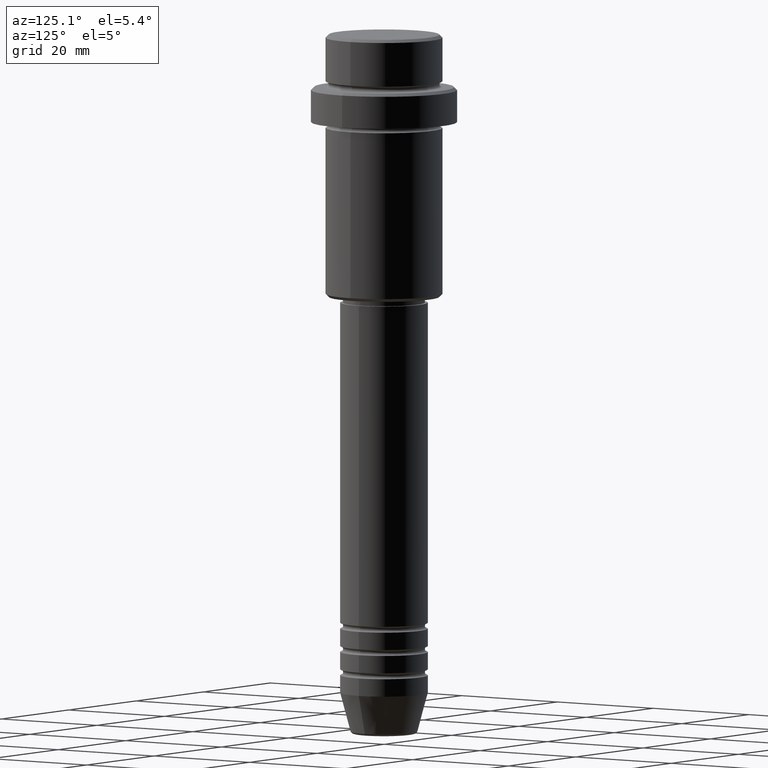
[diagram: clean part render]
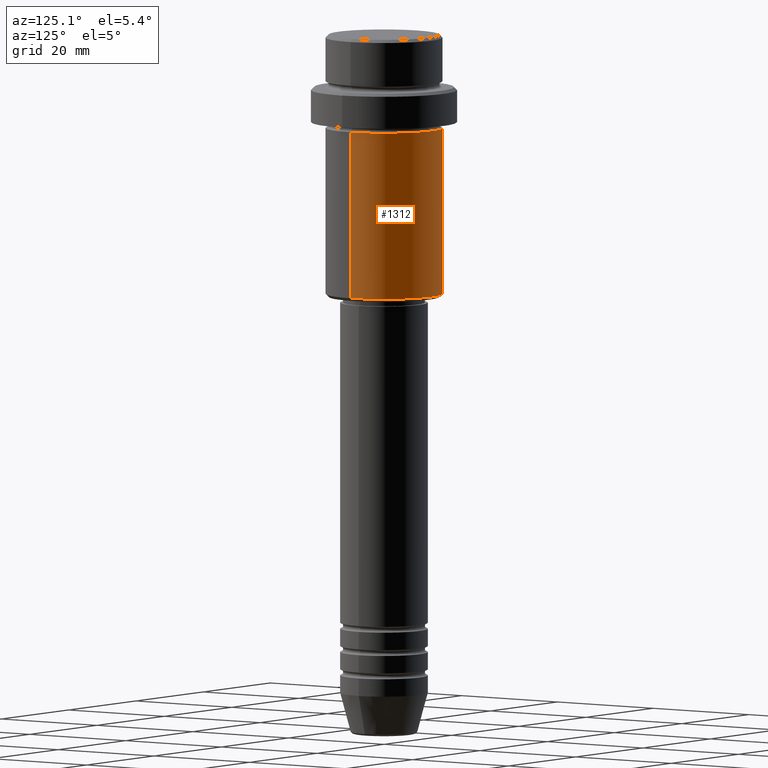
[diagram: same view with one face highlighted and labeled with its STEP entity id]
A machine part, auxiliary view. The second image highlights one B-rep face of the part: STEP entity #1312.
In plain terms, the highlighted cylindrical surface (partial cylindrical patch) has radius 10 mm, axis along (-0, -0, 1).
Its self-contained STEP definition (entity closure, byte-faithful):
#35 = LINE ( 'NONE', #1350, #264 ) ;
#88 = CARTESIAN_POINT ( 'NONE',  ( 0.000000000000000000, 0.000000000000000000, 0.000000000000000000 ) ) ;
#94 = EDGE_CURVE ( 'NONE', #779, #919, #442, .T. ) ;
#137 = ORIENTED_EDGE ( 'NONE', *, *, #315, .T. ) ;
#148 = AXIS2_PLACEMENT_3D ( 'NONE', #1151, #254, #370 ) ;
#159 = DIRECTION ( 'NONE',  ( -0.000000000000000000, -0.000000000000000000, 1.000000000000000000 ) ) ;
#214 = AXIS2_PLACEMENT_3D ( 'NONE', #1038, #159, #837 ) ;
#254 = DIRECTION ( 'NONE',  ( -0.000000000000000000, -0.000000000000000000, 1.000000000000000000 ) ) ;
#264 = VECTOR ( 'NONE', #369, 1000.000000000000000 ) ;
#315 = EDGE_CURVE ( 'NONE', #919, #1068, #1069, .T. ) ;
#369 = DIRECTION ( 'NONE',  ( -0.000000000000000000, -0.000000000000000000, 1.000000000000000000 ) ) ;
#370 = DIRECTION ( 'NONE',  ( 1.000000000000000000, 0.000000000000000000, 0.000000000000000000 ) ) ;
#396 = DIRECTION ( 'NONE',  ( -0.000000000000000000, -0.000000000000000000, 1.000000000000000000 ) ) ;
#415 = FACE_OUTER_BOUND ( 'NONE', #790, .T. ) ;
#442 = CIRCLE ( 'NONE', #214, 9.999999999999998224 ) ;
#493 = CARTESIAN_POINT ( 'NONE',  ( 9.999999999999998224, 0.000000000000000000, -16.00000000000000000 ) ) ;
#548 = ORIENTED_EDGE ( 'NONE', *, *, #94, .T. ) ;
#596 = CARTESIAN_POINT ( 'NONE',  ( 9.999999999999998224, 0.000000000000000000, -44.50000000000000000 ) ) ;
#675 = CIRCLE ( 'NONE', #148, 9.999999999999998224 ) ;
#779 = VERTEX_POINT ( 'NONE', #596 ) ;
#790 = EDGE_LOOP ( 'NONE', ( #548, #137, #970, #1197 ) ) ;
#822 = CARTESIAN_POINT ( 'NONE',  ( -9.999999999999998224, 1.224646799147353059E-15, 0.000000000000000000 ) ) ;
#833 = VECTOR ( 'NONE', #1267, 1000.000000000000000 ) ;
#837 = DIRECTION ( 'NONE',  ( -1.000000000000000000, 0.000000000000000000, 0.000000000000000000 ) ) ;
#839 = AXIS2_PLACEMENT_3D ( 'NONE', #88, #396, #1054 ) ;
#846 = EDGE_CURVE ( 'NONE', #1081, #1068, #675, .T. ) ;
#919 = VERTEX_POINT ( 'NONE', #1127 ) ;
#970 = ORIENTED_EDGE ( 'NONE', *, *, #846, .F. ) ;
#1038 = CARTESIAN_POINT ( 'NONE',  ( 0.000000000000000000, 0.000000000000000000, -44.50000000000000000 ) ) ;
#1048 = EDGE_CURVE ( 'NONE', #779, #1081, #35, .T. ) ;
#1054 = DIRECTION ( 'NONE',  ( 1.000000000000000000, 0.000000000000000000, 0.000000000000000000 ) ) ;
#1068 = VERTEX_POINT ( 'NONE', #1236 ) ;
#1069 = LINE ( 'NONE', #822, #833 ) ;
#1071 = CYLINDRICAL_SURFACE ( 'NONE', #839, 9.999999999999998224 ) ;
#1081 = VERTEX_POINT ( 'NONE', #493 ) ;
#1127 = CARTESIAN_POINT ( 'NONE',  ( -9.999999999999998224, 1.224646799147353059E-15, -44.50000000000000000 ) ) ;
#1151 = CARTESIAN_POINT ( 'NONE',  ( 0.000000000000000000, 0.000000000000000000, -16.00000000000000000 ) ) ;
#1197 = ORIENTED_EDGE ( 'NONE', *, *, #1048, .F. ) ;
#1236 = CARTESIAN_POINT ( 'NONE',  ( -9.999999999999998224, 1.224646799147353059E-15, -16.00000000000000000 ) ) ;
#1267 = DIRECTION ( 'NONE',  ( -0.000000000000000000, -0.000000000000000000, 1.000000000000000000 ) ) ;
#1312 = ADVANCED_FACE ( 'NONE', ( #415 ), #1071, .T. ) ;
#1350 = CARTESIAN_POINT ( 'NONE',  ( 9.999999999999998224, 0.000000000000000000, 0.000000000000000000 ) ) ;